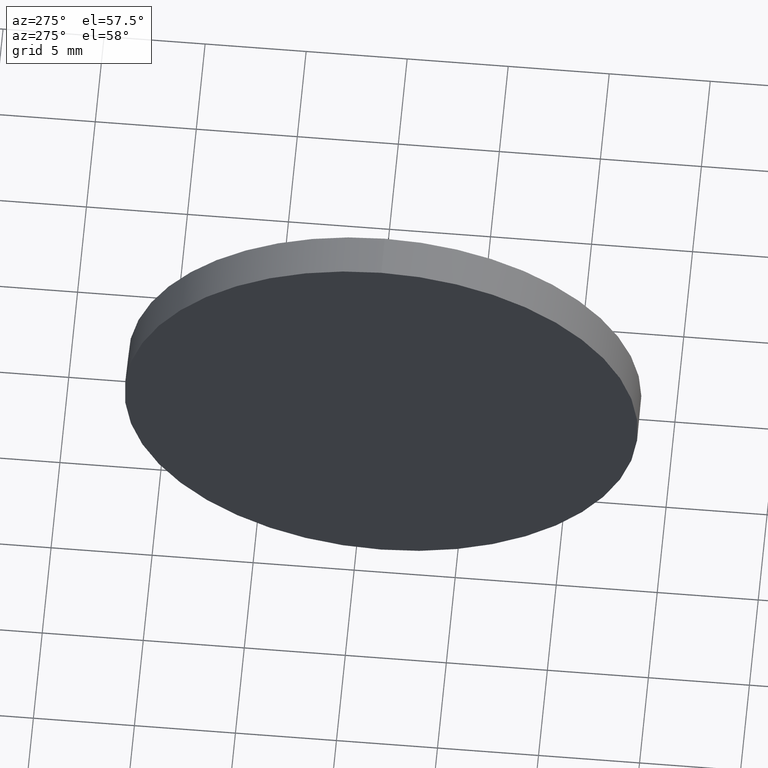
[diagram: clean part render]
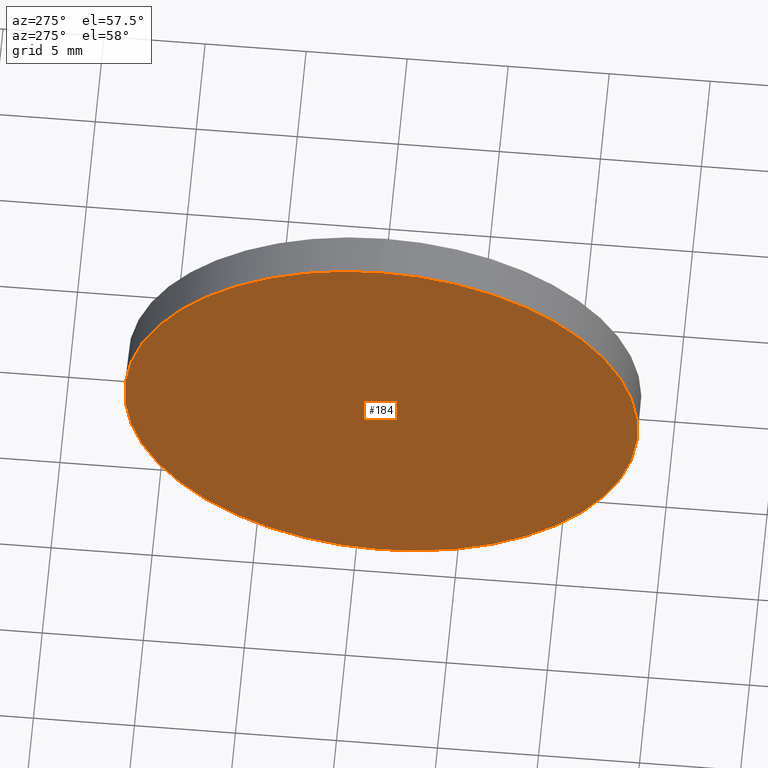
[diagram: same view with one face highlighted and labeled with its STEP entity id]
A machine part, auxiliary view. The second image highlights one B-rep face of the part: STEP entity #184.
In plain terms, the highlighted planar face has unit normal (1, 0, 0).
Its self-contained STEP definition (entity closure, byte-faithful):
#9 = AXIS2_PLACEMENT_3D ( 'NONE', #133, #177, #21 ) ;
#19 = CARTESIAN_POINT ( 'NONE',  ( 615.9685008246222000, 203.7470888787178500, 12.70000000000001700 ) ) ;
#21 = DIRECTION ( 'NONE',  ( 0.0000000000000000000, 0.0000000000000000000, 1.000000000000000000 ) ) ;
#25 = PLANE ( 'NONE',  #146 ) ;
#40 = EDGE_CURVE ( 'NONE', #43, #85, #156, .T. ) ;
#42 = EDGE_LOOP ( 'NONE', ( #175, #96 ) ) ;
#43 = VERTEX_POINT ( 'NONE', #48 ) ;
#48 = CARTESIAN_POINT ( 'NONE',  ( 615.9685008246222000, 203.7470888787178500, -12.70000000000001700 ) ) ;
#50 = DIRECTION ( 'NONE',  ( -1.000000000000000000, -0.0000000000000000000, -0.0000000000000000000 ) ) ;
#53 = DIRECTION ( 'NONE',  ( 0.0000000000000000000, 0.0000000000000000000, -1.000000000000000000 ) ) ;
#62 = CARTESIAN_POINT ( 'NONE',  ( 615.9685008246222000, 203.7470888787178500, 0.0000000000000000000 ) ) ;
#74 = FACE_OUTER_BOUND ( 'NONE', #42, .T. ) ;
#75 = DIRECTION ( 'NONE',  ( 0.0000000000000000000, 0.0000000000000000000, 1.000000000000000000 ) ) ;
#85 = VERTEX_POINT ( 'NONE', #19 ) ;
#96 = ORIENTED_EDGE ( 'NONE', *, *, #40, .T. ) ;
#127 = DIRECTION ( 'NONE',  ( 1.000000000000000000, 0.0000000000000000000, 0.0000000000000000000 ) ) ;
#129 = AXIS2_PLACEMENT_3D ( 'NONE', #168, #50, #75 ) ;
#133 = CARTESIAN_POINT ( 'NONE',  ( 615.9685008246222000, 203.7470888787178500, 0.0000000000000000000 ) ) ;
#146 = AXIS2_PLACEMENT_3D ( 'NONE', #62, #127, #53 ) ;
#156 = CIRCLE ( 'NONE', #9, 12.70000000000001700 ) ;
#168 = CARTESIAN_POINT ( 'NONE',  ( 615.9685008246222000, 203.7470888787178500, 0.0000000000000000000 ) ) ;
#175 = ORIENTED_EDGE ( 'NONE', *, *, #180, .T. ) ;
#177 = DIRECTION ( 'NONE',  ( -1.000000000000000000, -0.0000000000000000000, -0.0000000000000000000 ) ) ;
#180 = EDGE_CURVE ( 'NONE', #85, #43, #186, .T. ) ;
#184 = ADVANCED_FACE ( 'NONE', ( #74 ), #25, .F. ) ;
#186 = CIRCLE ( 'NONE', #129, 12.70000000000001700 ) ;